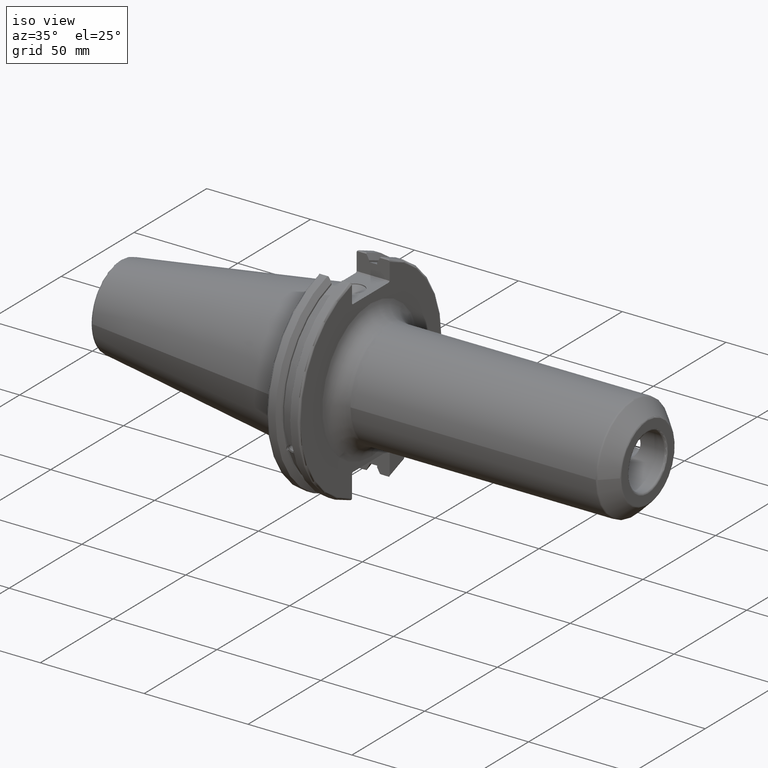
[diagram: clean part render]
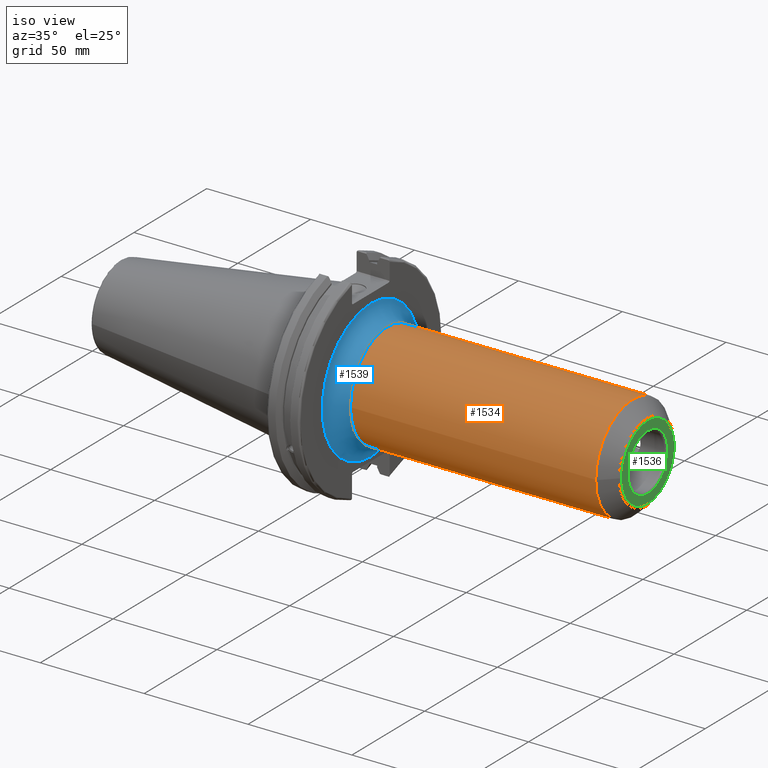
[diagram: same view with three faces highlighted in distinct colors, each labeled with its STEP entity id]
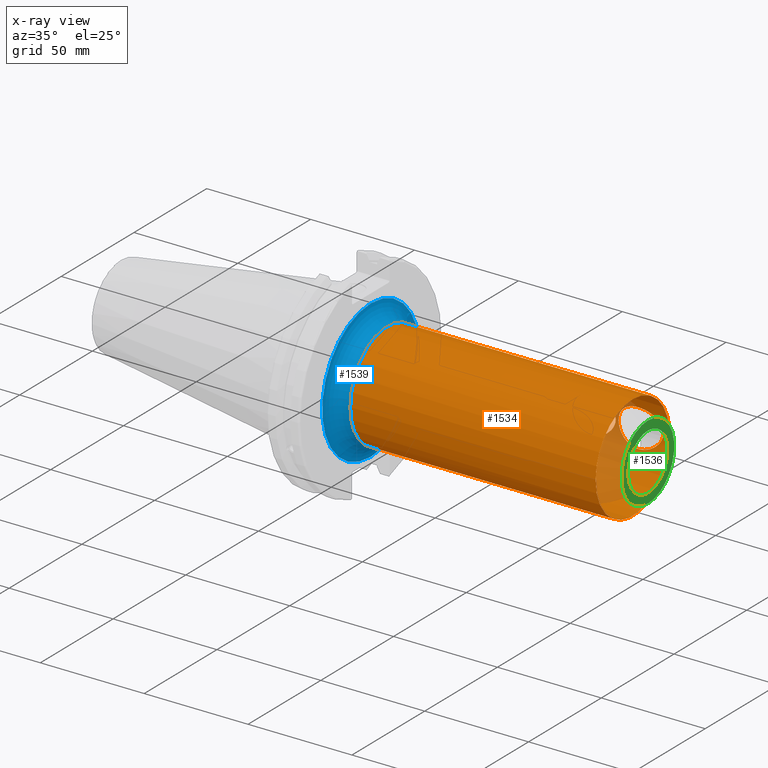
[diagram: x-ray of the same camera — body ghosted, the three highlighted faces saturated]
A machine part, iso view with three faces highlighted in distinct colors.
The next image is the same camera in x-ray (body ghosted, the three faces saturated) — at least one of them is partly hidden behind the body in this view.
Their STEP definitions:

[orange] entity #1534 — the highlighted cylindrical surface (bore or boss wall) has radius 25.4 mm, axis along (1, 0, 0).
#58=FACE_BOUND('',#221,.T.);
#59=FACE_BOUND('',#222,.T.);
#129=FACE_OUTER_BOUND('',#220,.T.);
#220=EDGE_LOOP('',(#1065,#1066,#1067,#1068,#1069,#1070));
#221=EDGE_LOOP('',(#1071,#1072));
#222=EDGE_LOOP('',(#1073,#1074));
#327=B_SPLINE_CURVE_WITH_KNOTS('',3,(#2292,#2293,#2294,#2295,#2296,#2297,
#2298,#2299,#2300,#2301),.UNSPECIFIED.,.F.,.F.,(4,2,2,2,4),(0.,0.369017369968606,
0.738034739937213,1.1234251653926,1.508815590848),.UNSPECIFIED.);
#328=B_SPLINE_CURVE_WITH_KNOTS('',3,(#2302,#2303,#2304,#2305,#2306,#2307,
#2308,#2309,#2310,#2311,#2312,#2313,#2314,#2315,#2316,#2317,#2318,#2319,
#2320,#2321,#2322,#2323,#2324,#2325,#2326,#2327),.UNSPECIFIED.,.F.,.F.,
(4,2,2,2,2,2,2,2,2,2,2,2,4),(1.508815590848,1.89420601630339,2.27959644175878,
2.64861381172738,3.01763118169599,3.3866485516646,3.7556659216332,4.1410563470886,
4.52644677254399,4.91183719799938,5.29722762345477,5.66624499342337,6.03526236339198),
 .UNSPECIFIED.);
#331=B_SPLINE_CURVE_WITH_KNOTS('',3,(#2377,#2378,#2379,#2380,#2381,#2382,
#2383,#2384,#2385,#2386),.UNSPECIFIED.,.F.,.F.,(4,2,2,2,4),(0.,0.369017369968606,
0.738034739937213,1.1234251653926,1.508815590848),.UNSPECIFIED.);
#332=B_SPLINE_CURVE_WITH_KNOTS('',3,(#2387,#2388,#2389,#2390,#2391,#2392,
#2393,#2394,#2395,#2396,#2397,#2398,#2399,#2400,#2401,#2402,#2403,#2404,
#2405,#2406,#2407,#2408,#2409,#2410,#2411,#2412),.UNSPECIFIED.,.F.,.F.,
(4,2,2,2,2,2,2,2,2,2,2,2,4),(1.508815590848,1.89420601630339,2.27959644175878,
2.64861381172738,3.01763118169599,3.3866485516646,3.7556659216332,4.1410563470886,
4.52644677254399,4.91183719799938,5.29722762345477,5.66624499342337,6.03526236339198),
 .UNSPECIFIED.);
#376=LINE('',#2431,#468);
#468=VECTOR('',#1855,25.4);
#562=CIRCLE('',#1652,25.4);
#563=CIRCLE('',#1653,25.4);
#566=CIRCLE('',#1658,25.4);
#567=CIRCLE('',#1659,25.4);
#638=VERTEX_POINT('',#2289);
#639=VERTEX_POINT('',#2291);
#644=VERTEX_POINT('',#2374);
#645=VERTEX_POINT('',#2376);
#648=VERTEX_POINT('',#2418);
#649=VERTEX_POINT('',#2420);
#652=VERTEX_POINT('',#2430);
#653=VERTEX_POINT('',#2432);
#800=EDGE_CURVE('',#639,#638,#327,.T.);
#801=EDGE_CURVE('',#638,#639,#328,.T.);
#808=EDGE_CURVE('',#645,#644,#331,.T.);
#809=EDGE_CURVE('',#644,#645,#332,.T.);
#813=EDGE_CURVE('',#648,#649,#562,.T.);
#814=EDGE_CURVE('',#649,#648,#563,.T.);
#818=EDGE_CURVE('',#649,#652,#376,.T.);
#819=EDGE_CURVE('',#653,#652,#566,.T.);
#820=EDGE_CURVE('',#652,#653,#567,.T.);
#1065=ORIENTED_EDGE('',*,*,#814,.F.);
#1066=ORIENTED_EDGE('',*,*,#818,.T.);
#1067=ORIENTED_EDGE('',*,*,#819,.F.);
#1068=ORIENTED_EDGE('',*,*,#820,.F.);
#1069=ORIENTED_EDGE('',*,*,#818,.F.);
#1070=ORIENTED_EDGE('',*,*,#813,.F.);
#1071=ORIENTED_EDGE('',*,*,#800,.T.);
#1072=ORIENTED_EDGE('',*,*,#801,.T.);
#1073=ORIENTED_EDGE('',*,*,#808,.T.);
#1074=ORIENTED_EDGE('',*,*,#809,.T.);
#1501=CYLINDRICAL_SURFACE('',#1657,25.4);
#1534=ADVANCED_FACE('',(#129,#58,#59),#1501,.T.);
#1652=AXIS2_PLACEMENT_3D('',#2421,#1842,#1843);
#1653=AXIS2_PLACEMENT_3D('',#2422,#1844,#1845);
#1657=AXIS2_PLACEMENT_3D('',#2429,#1853,#1854);
#1658=AXIS2_PLACEMENT_3D('',#2433,#1856,#1857);
#1659=AXIS2_PLACEMENT_3D('',#2434,#1858,#1859);
#1842=DIRECTION('center_axis',(1.,0.,0.));
#1843=DIRECTION('ref_axis',(0.,-1.,1.83697019872103E-16));
#1844=DIRECTION('center_axis',(1.,0.,0.));
#1845=DIRECTION('ref_axis',(0.,-1.,1.83697019872103E-16));
#1853=DIRECTION('center_axis',(1.,0.,0.));
#1854=DIRECTION('ref_axis',(0.,1.,0.));
#1855=DIRECTION('',(-1.,0.,0.));
#1856=DIRECTION('center_axis',(-1.,0.,0.));
#1857=DIRECTION('ref_axis',(0.,-1.,-1.22464679914735E-16));
#1858=DIRECTION('center_axis',(-1.,0.,0.));
#1859=DIRECTION('ref_axis',(0.,-1.,-1.22464679914735E-16));
#2289=CARTESIAN_POINT('',(119.15,25.4,-1.3164953090834E-15));
#2291=CARTESIAN_POINT('',(108.4,23.7239138359832,-9.07391383598316));
#2292=CARTESIAN_POINT('Ctrl Pts',(108.4,23.7239138359832,-9.07391383598316));
#2293=CARTESIAN_POINT('Ctrl Pts',(109.630057899895,23.7239138359832,-9.07391383598316));
#2294=CARTESIAN_POINT('Ctrl Pts',(110.954559809363,23.8001174065229,-8.88240676509612));
#2295=CARTESIAN_POINT('Ctrl Pts',(113.449572697343,24.0855398848548,-8.07647957136603));
#2296=CARTESIAN_POINT('Ctrl Pts',(114.620582269229,24.291062336986,-7.46229822654654));
#2297=CARTESIAN_POINT('Ctrl Pts',(116.593624452226,24.7039713823109,-5.95887220725696));
#2298=CARTESIAN_POINT('Ctrl Pts',(117.523980194765,24.9424362858309,-4.94265692227389));
#2299=CARTESIAN_POINT('Ctrl Pts',(118.803437869973,25.2934812678526,-2.60668659485486));
#2300=CARTESIAN_POINT('Ctrl Pts',(119.15,25.4,-1.28463475151797));
#2301=CARTESIAN_POINT('Ctrl Pts',(119.15,25.4,-1.38777878078145E-15));
#2302=CARTESIAN_POINT('Ctrl Pts',(119.15,25.4,-9.71445146547012E-16));
#2303=CARTESIAN_POINT('Ctrl Pts',(119.15,25.4,1.28463475151797));
#2304=CARTESIAN_POINT('Ctrl Pts',(118.803437869973,25.2934812678526,2.60668659485485));
#2305=CARTESIAN_POINT('Ctrl Pts',(117.523980194765,24.9424362858309,4.94265692227389));
#2306=CARTESIAN_POINT('Ctrl Pts',(116.593624452226,24.7039713823109,5.95887220725696));
#2307=CARTESIAN_POINT('Ctrl Pts',(114.620582269229,24.291062336986,7.46229822654654));
#2308=CARTESIAN_POINT('Ctrl Pts',(113.449572697343,24.0855398848548,8.07647957136603));
#2309=CARTESIAN_POINT('Ctrl Pts',(110.954559809363,23.8001174065229,8.88240676509612));
#2310=CARTESIAN_POINT('Ctrl Pts',(109.630057899895,23.7239138359832,9.07391383598316));
#2311=CARTESIAN_POINT('Ctrl Pts',(107.169942100105,23.7239138359832,9.07391383598316));
#2312=CARTESIAN_POINT('Ctrl Pts',(105.845440190638,23.8001174065229,8.88240676509612));
#2313=CARTESIAN_POINT('Ctrl Pts',(103.350427302657,24.0855398848548,8.07647957136603));
#2314=CARTESIAN_POINT('Ctrl Pts',(102.179417730771,24.291062336986,7.46229822654655));
#2315=CARTESIAN_POINT('Ctrl Pts',(100.206375547774,24.7039713823109,5.95887220725697));
#2316=CARTESIAN_POINT('Ctrl Pts',(99.2760198052351,24.9424362858309,4.94265692227389));
#2317=CARTESIAN_POINT('Ctrl Pts',(97.9965621300272,25.2934812678526,2.60668659485486));
#2318=CARTESIAN_POINT('Ctrl Pts',(97.65,25.4,1.28463475151797));
#2319=CARTESIAN_POINT('Ctrl Pts',(97.65,25.4,-1.28463475151797));
#2320=CARTESIAN_POINT('Ctrl Pts',(97.9965621300272,25.2934812678526,-2.60668659485485));
#2321=CARTESIAN_POINT('Ctrl Pts',(99.2760198052351,24.9424362858309,-4.94265692227389));
#2322=CARTESIAN_POINT('Ctrl Pts',(100.206375547774,24.7039713823109,-5.95887220725696));
#2323=CARTESIAN_POINT('Ctrl Pts',(102.179417730771,24.291062336986,-7.46229822654654));
#2324=CARTESIAN_POINT('Ctrl Pts',(103.350427302657,24.0855398848548,-8.07647957136603));
#2325=CARTESIAN_POINT('Ctrl Pts',(105.845440190638,23.8001174065229,-8.88240676509612));
#2326=CARTESIAN_POINT('Ctrl Pts',(107.169942100105,23.7239138359832,-9.07391383598316));
#2327=CARTESIAN_POINT('Ctrl Pts',(108.4,23.7239138359832,-9.07391383598316));
#2374=CARTESIAN_POINT('',(142.05,25.4,-1.3164953090834E-15));
#2376=CARTESIAN_POINT('',(131.3,23.7239138359832,-9.07391383598316));
#2377=CARTESIAN_POINT('Ctrl Pts',(131.3,23.7239138359832,-9.07391383598316));
#2378=CARTESIAN_POINT('Ctrl Pts',(132.530057899895,23.7239138359832,-9.07391383598316));
#2379=CARTESIAN_POINT('Ctrl Pts',(133.854559809363,23.8001174065229,-8.88240676509612));
#2380=CARTESIAN_POINT('Ctrl Pts',(136.349572697343,24.0855398848548,-8.07647957136603));
#2381=CARTESIAN_POINT('Ctrl Pts',(137.520582269229,24.291062336986,-7.46229822654654));
#2382=CARTESIAN_POINT('Ctrl Pts',(139.493624452226,24.7039713823109,-5.95887220725696));
#2383=CARTESIAN_POINT('Ctrl Pts',(140.423980194765,24.9424362858309,-4.94265692227389));
#2384=CARTESIAN_POINT('Ctrl Pts',(141.703437869973,25.2934812678526,-2.60668659485486));
#2385=CARTESIAN_POINT('Ctrl Pts',(142.05,25.4,-1.28463475151797));
#2386=CARTESIAN_POINT('Ctrl Pts',(142.05,25.4,-2.22044604925031E-15));
#2387=CARTESIAN_POINT('Ctrl Pts',(142.05,25.4,-4.16333634234434E-16));
#2388=CARTESIAN_POINT('Ctrl Pts',(142.05,25.4,1.28463475151797));
#2389=CARTESIAN_POINT('Ctrl Pts',(141.703437869973,25.2934812678526,2.60668659485485));
#2390=CARTESIAN_POINT('Ctrl Pts',(140.423980194765,24.9424362858309,4.94265692227389));
#2391=CARTESIAN_POINT('Ctrl Pts',(139.493624452226,24.7039713823109,5.95887220725696));
#2392=CARTESIAN_POINT('Ctrl Pts',(137.520582269229,24.291062336986,7.46229822654654));
#2393=CARTESIAN_POINT('Ctrl Pts',(136.349572697343,24.0855398848548,8.07647957136603));
#2394=CARTESIAN_POINT('Ctrl Pts',(133.854559809363,23.8001174065229,8.88240676509612));
#2395=CARTESIAN_POINT('Ctrl Pts',(132.530057899895,23.7239138359832,9.07391383598316));
#2396=CARTESIAN_POINT('Ctrl Pts',(130.069942100105,23.7239138359832,9.07391383598316));
#2397=CARTESIAN_POINT('Ctrl Pts',(128.745440190638,23.8001174065229,8.88240676509612));
#2398=CARTESIAN_POINT('Ctrl Pts',(126.250427302657,24.0855398848548,8.07647957136603));
#2399=CARTESIAN_POINT('Ctrl Pts',(125.079417730771,24.291062336986,7.46229822654655));
#2400=CARTESIAN_POINT('Ctrl Pts',(123.106375547774,24.7039713823109,5.95887220725697));
#2401=CARTESIAN_POINT('Ctrl Pts',(122.176019805235,24.9424362858309,4.94265692227389));
#2402=CARTESIAN_POINT('Ctrl Pts',(120.896562130027,25.2934812678526,2.60668659485486));
#2403=CARTESIAN_POINT('Ctrl Pts',(120.55,25.4,1.28463475151797));
#2404=CARTESIAN_POINT('Ctrl Pts',(120.55,25.4,-1.28463475151797));
#2405=CARTESIAN_POINT('Ctrl Pts',(120.896562130027,25.2934812678526,-2.60668659485485));
#2406=CARTESIAN_POINT('Ctrl Pts',(122.176019805235,24.9424362858309,-4.94265692227389));
#2407=CARTESIAN_POINT('Ctrl Pts',(123.106375547774,24.7039713823109,-5.95887220725696));
#2408=CARTESIAN_POINT('Ctrl Pts',(125.079417730771,24.291062336986,-7.46229822654654));
#2409=CARTESIAN_POINT('Ctrl Pts',(126.250427302657,24.0855398848548,-8.07647957136603));
#2410=CARTESIAN_POINT('Ctrl Pts',(128.745440190638,23.8001174065229,-8.88240676509612));
#2411=CARTESIAN_POINT('Ctrl Pts',(130.069942100105,23.7239138359832,-9.07391383598316));
#2412=CARTESIAN_POINT('Ctrl Pts',(131.3,23.7239138359832,-9.07391383598316));
#2418=CARTESIAN_POINT('',(145.085786437627,-3.11060286983428E-15,25.4));
#2420=CARTESIAN_POINT('',(145.085786437627,-25.4,-3.11060286983428E-15));
#2421=CARTESIAN_POINT('Origin',(145.085786437627,0.,0.));
#2422=CARTESIAN_POINT('Origin',(145.085786437627,0.,0.));
#2429=CARTESIAN_POINT('Origin',(82.275,0.,0.));
#2430=CARTESIAN_POINT('',(27.05,-25.4,-3.11060286983428E-15));
#2431=CARTESIAN_POINT('',(82.275,-25.4,-3.11060286983428E-15));
#2432=CARTESIAN_POINT('',(27.05,-3.11060286983428E-15,-25.4));
#2433=CARTESIAN_POINT('Origin',(27.05,0.,0.));
#2434=CARTESIAN_POINT('Origin',(27.05,0.,0.));

[blue] entity #1539 — the highlighted toroidal blend (fillet) surface has major radius 33.4 mm and minor (blend) radius 8 mm.
#36=TOROIDAL_SURFACE('',#1671,33.4,8.);
#134=FACE_OUTER_BOUND('',#230,.T.);
#230=EDGE_LOOP('',(#1096,#1097,#1098,#1099,#1100));
#566=CIRCLE('',#1658,25.4);
#567=CIRCLE('',#1659,25.4);
#575=CIRCLE('',#1672,8.);
#576=CIRCLE('',#1673,33.4);
#652=VERTEX_POINT('',#2430);
#653=VERTEX_POINT('',#2432);
#659=VERTEX_POINT('',#2453);
#819=EDGE_CURVE('',#653,#652,#566,.T.);
#820=EDGE_CURVE('',#652,#653,#567,.T.);
#829=EDGE_CURVE('',#653,#659,#575,.T.);
#830=EDGE_CURVE('',#659,#659,#576,.T.);
#1096=ORIENTED_EDGE('',*,*,#820,.T.);
#1097=ORIENTED_EDGE('',*,*,#829,.T.);
#1098=ORIENTED_EDGE('',*,*,#830,.T.);
#1099=ORIENTED_EDGE('',*,*,#829,.F.);
#1100=ORIENTED_EDGE('',*,*,#819,.T.);
#1539=ADVANCED_FACE('',(#134),#36,.F.);
#1658=AXIS2_PLACEMENT_3D('',#2433,#1856,#1857);
#1659=AXIS2_PLACEMENT_3D('',#2434,#1858,#1859);
#1671=AXIS2_PLACEMENT_3D('',#2452,#1883,#1884);
#1672=AXIS2_PLACEMENT_3D('',#2454,#1885,#1886);
#1673=AXIS2_PLACEMENT_3D('',#2455,#1887,#1888);
#1856=DIRECTION('center_axis',(-1.,0.,0.));
#1857=DIRECTION('ref_axis',(0.,-1.,-1.22464679914735E-16));
#1858=DIRECTION('center_axis',(-1.,0.,0.));
#1859=DIRECTION('ref_axis',(0.,-1.,-1.22464679914735E-16));
#1883=DIRECTION('center_axis',(-1.,0.,0.));
#1884=DIRECTION('ref_axis',(0.,0.,1.));
#1885=DIRECTION('center_axis',(0.,-1.,1.22464679914735E-16));
#1886=DIRECTION('ref_axis',(0.,-1.22464679914735E-16,-1.));
#1887=DIRECTION('center_axis',(1.,0.,0.));
#1888=DIRECTION('ref_axis',(0.,-1.,-1.22464679914735E-16));
#2430=CARTESIAN_POINT('',(27.05,-25.4,-3.11060286983428E-15));
#2432=CARTESIAN_POINT('',(27.05,-3.11060286983428E-15,-25.4));
#2433=CARTESIAN_POINT('Origin',(27.05,0.,0.));
#2434=CARTESIAN_POINT('Origin',(27.05,0.,0.));
#2452=CARTESIAN_POINT('Origin',(27.05,0.,0.));
#2453=CARTESIAN_POINT('',(19.05,-4.09032030915216E-15,-33.4));
#2454=CARTESIAN_POINT('Origin',(27.05,-4.09032030915216E-15,-33.4));
#2455=CARTESIAN_POINT('Origin',(19.05,0.,0.));

[green] entity #1536 — the highlighted planar face has unit normal (1, 0, 0).
#60=FACE_BOUND('',#225,.T.);
#84=PLANE('',#1663);
#131=FACE_OUTER_BOUND('',#224,.T.);
#224=EDGE_LOOP('',(#1080));
#225=EDGE_LOOP('',(#1081));
#568=CIRCLE('',#1661,18.0857864376269);
#570=CIRCLE('',#1664,13.7);
#654=VERTEX_POINT('',#2436);
#655=VERTEX_POINT('',#2440);
#821=EDGE_CURVE('',#654,#654,#568,.T.);
#823=EDGE_CURVE('',#655,#655,#570,.T.);
#1080=ORIENTED_EDGE('',*,*,#821,.F.);
#1081=ORIENTED_EDGE('',*,*,#823,.F.);
#1536=ADVANCED_FACE('',(#131,#60),#84,.T.);
#1661=AXIS2_PLACEMENT_3D('',#2437,#1862,#1863);
#1663=AXIS2_PLACEMENT_3D('',#2439,#1866,#1867);
#1664=AXIS2_PLACEMENT_3D('',#2441,#1868,#1869);
#1862=DIRECTION('center_axis',(-1.,0.,0.));
#1863=DIRECTION('ref_axis',(0.,-1.,1.83697019872103E-16));
#1866=DIRECTION('center_axis',(1.,0.,0.));
#1867=DIRECTION('ref_axis',(0.,0.,-1.));
#1868=DIRECTION('center_axis',(1.,0.,0.));
#1869=DIRECTION('ref_axis',(0.,-1.,1.83697019872103E-16));
#2436=CARTESIAN_POINT('',(152.4,-2.21487004709024E-15,18.0857864376269));
#2437=CARTESIAN_POINT('Origin',(152.4,0.,0.));
#2439=CARTESIAN_POINT('Origin',(152.4,12.7,0.));
#2440=CARTESIAN_POINT('',(152.4,-1.67776611483187E-15,13.7));
#2441=CARTESIAN_POINT('Origin',(152.4,0.,0.));